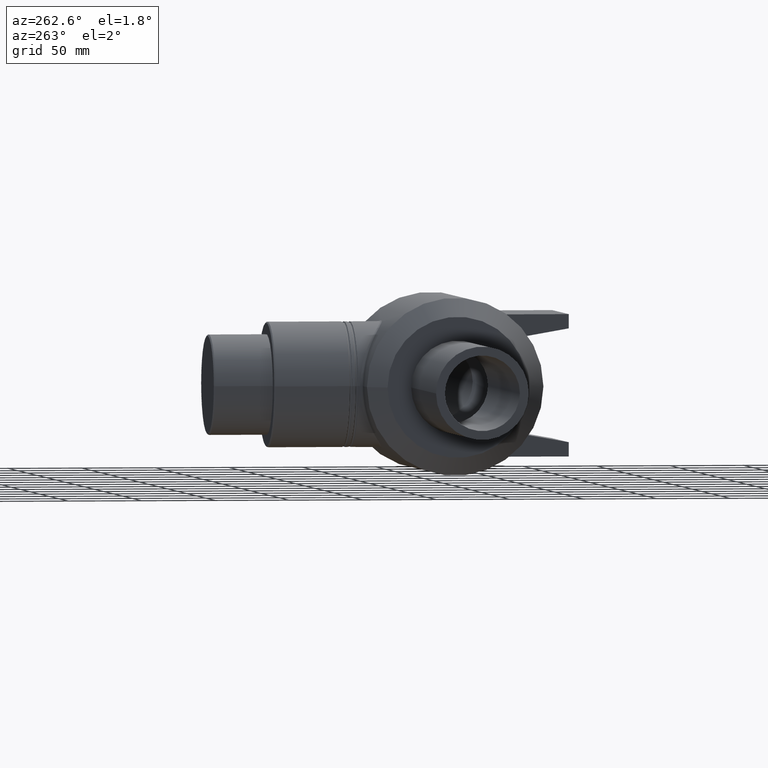
[diagram: clean part render]
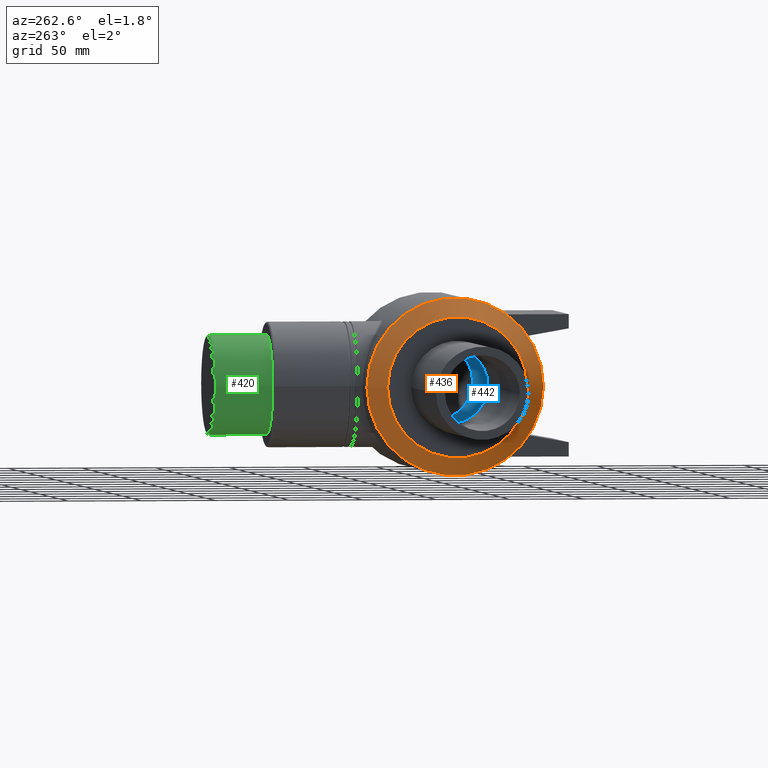
[diagram: same view with three faces highlighted in distinct colors, each labeled with its STEP entity id]
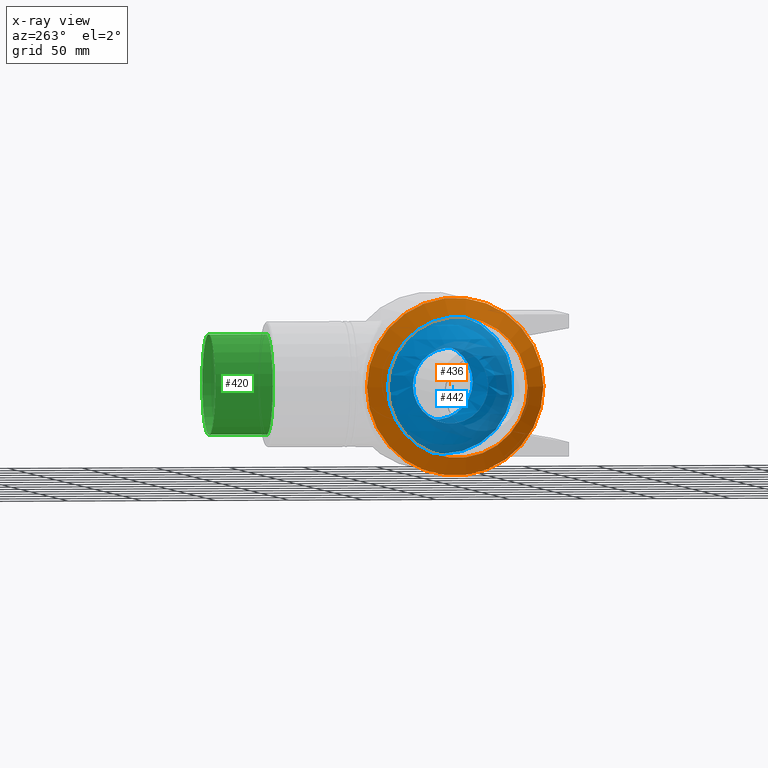
[diagram: x-ray of the same camera — body ghosted, the three highlighted faces saturated]
A machine part, auxiliary view with three faces highlighted in distinct colors.
The next image is the same camera in x-ray (body ghosted, the three faces saturated) — at least one of them is partly hidden behind the body in this view.
Their STEP definitions:

[orange] entity #436 — the highlighted conical surface has half-angle 45 deg.
#36=CONICAL_SURFACE('',#488,53.79,45.);
#92=FACE_BOUND('',#182,.T.);
#135=FACE_OUTER_BOUND('',#181,.T.);
#181=EDGE_LOOP('',(#392));
#182=EDGE_LOOP('',(#393));
#205=CIRCLE('',#452,60.);
#219=CIRCLE('',#486,47.58);
#232=VERTEX_POINT('',#841);
#258=VERTEX_POINT('',#921);
#272=EDGE_CURVE('',#232,#232,#205,.T.);
#306=EDGE_CURVE('',#258,#258,#219,.T.);
#392=ORIENTED_EDGE('',*,*,#272,.F.);
#393=ORIENTED_EDGE('',*,*,#306,.T.);
#436=ADVANCED_FACE('',(#135,#92),#36,.T.);
#452=AXIS2_PLACEMENT_3D('',#842,#516,#517);
#486=AXIS2_PLACEMENT_3D('',#922,#604,#605);
#488=AXIS2_PLACEMENT_3D('',#925,#608,#609);
#516=DIRECTION('center_axis',(1.,0.,0.));
#517=DIRECTION('ref_axis',(0.,0.,-1.));
#604=DIRECTION('center_axis',(1.,0.,0.));
#605=DIRECTION('ref_axis',(0.,0.,-1.));
#608=DIRECTION('center_axis',(1.,0.,0.));
#609=DIRECTION('ref_axis',(0.,1.,0.));
#841=CARTESIAN_POINT('',(-64.58,60.,0.));
#842=CARTESIAN_POINT('Origin',(-64.58,0.,0.));
#921=CARTESIAN_POINT('',(-77.,47.58,0.));
#922=CARTESIAN_POINT('Origin',(-77.,0.,0.));
#925=CARTESIAN_POINT('Origin',(-70.79,0.,0.));

[blue] entity #442 — the highlighted spherical surface has radius 47.25 mm.
#15=SPHERICAL_SURFACE('',#499,47.25);
#98=FACE_BOUND('',#193,.T.);
#99=FACE_BOUND('',#194,.T.);
#193=EDGE_LOOP('',(#404));
#194=EDGE_LOOP('',(#405));
#225=CIRCLE('',#498,25.5);
#226=CIRCLE('',#500,25.5);
#264=VERTEX_POINT('',#939);
#265=VERTEX_POINT('',#942);
#312=EDGE_CURVE('',#264,#264,#225,.T.);
#313=EDGE_CURVE('',#265,#265,#226,.T.);
#404=ORIENTED_EDGE('',*,*,#313,.F.);
#405=ORIENTED_EDGE('',*,*,#312,.T.);
#442=ADVANCED_FACE('',(#98,#99),#15,.F.);
#498=AXIS2_PLACEMENT_3D('',#940,#628,#629);
#499=AXIS2_PLACEMENT_3D('',#941,#630,#631);
#500=AXIS2_PLACEMENT_3D('',#943,#632,#633);
#628=DIRECTION('center_axis',(1.,0.,0.));
#629=DIRECTION('ref_axis',(0.,0.,-1.));
#630=DIRECTION('center_axis',(6.12323399573677E-17,0.,1.));
#631=DIRECTION('ref_axis',(1.,0.,0.));
#632=DIRECTION('center_axis',(1.,0.,0.));
#633=DIRECTION('ref_axis',(0.,0.,-1.));
#939=CARTESIAN_POINT('',(39.7782918185285,25.5,0.));
#940=CARTESIAN_POINT('Origin',(39.7782918185285,0.,0.));
#941=CARTESIAN_POINT('Origin',(0.,0.,0.));
#942=CARTESIAN_POINT('',(-39.7782918185285,25.5,0.));
#943=CARTESIAN_POINT('Origin',(-39.7782918185285,0.,0.));

[green] entity #420 — the highlighted cylindrical surface (bore or boss wall) has radius 34 mm, axis along (0, 1, 0).
#87=FACE_BOUND('',#161,.T.);
#106=CYLINDRICAL_SURFACE('',#468,34.);
#119=FACE_OUTER_BOUND('',#160,.T.);
#160=EDGE_LOOP('',(#341));
#161=EDGE_LOOP('',(#342));
#214=CIRCLE('',#464,34.);
#215=CIRCLE('',#466,34.);
#245=VERTEX_POINT('',#870);
#246=VERTEX_POINT('',#873);
#285=EDGE_CURVE('',#245,#245,#214,.T.);
#286=EDGE_CURVE('',#246,#246,#215,.T.);
#341=ORIENTED_EDGE('',*,*,#285,.T.);
#342=ORIENTED_EDGE('',*,*,#286,.F.);
#420=ADVANCED_FACE('',(#119,#87),#106,.T.);
#464=AXIS2_PLACEMENT_3D('',#871,#544,#545);
#466=AXIS2_PLACEMENT_3D('',#874,#548,#549);
#468=AXIS2_PLACEMENT_3D('',#877,#552,#553);
#544=DIRECTION('center_axis',(0.,1.,0.));
#545=DIRECTION('ref_axis',(1.,0.,0.));
#548=DIRECTION('center_axis',(0.,1.,0.));
#549=DIRECTION('ref_axis',(1.,0.,0.));
#552=DIRECTION('center_axis',(0.,1.,0.));
#553=DIRECTION('ref_axis',(-1.,0.,0.));
#870=CARTESIAN_POINT('',(-34.,120.,0.));
#871=CARTESIAN_POINT('Origin',(0.,120.,0.));
#873=CARTESIAN_POINT('',(-34.,159.15,4.163799117101E-15));
#874=CARTESIAN_POINT('Origin',(0.,159.15,0.));
#877=CARTESIAN_POINT('Origin',(0.,140.,0.));